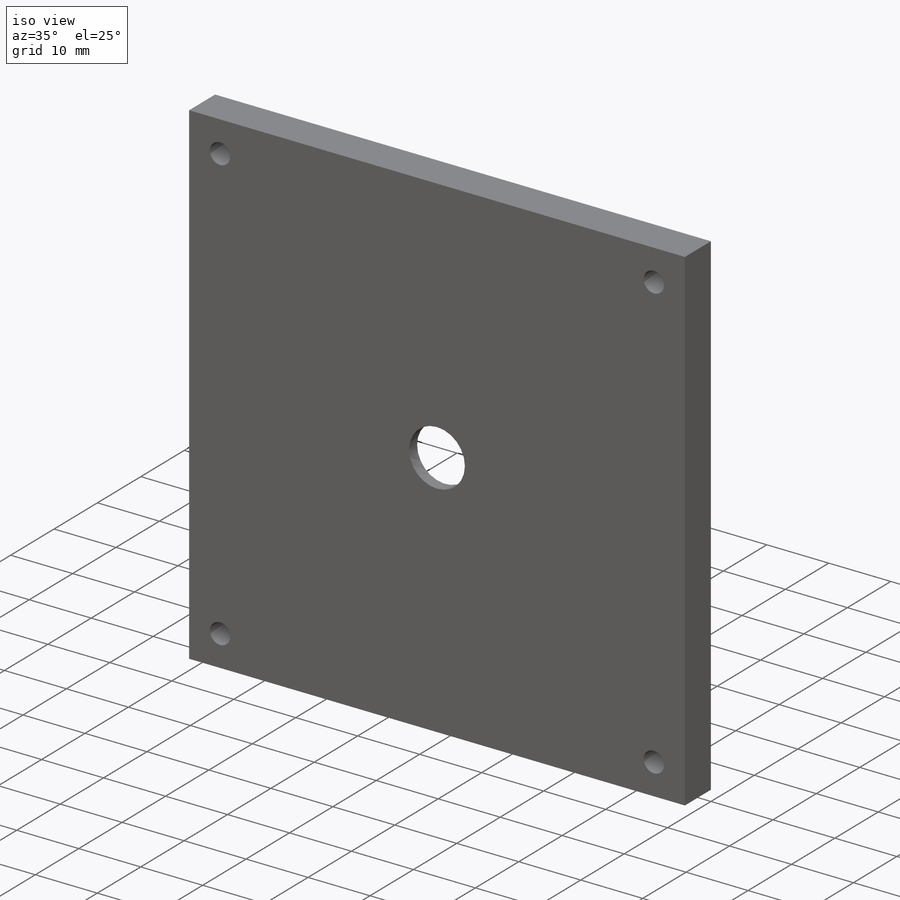
[diagram: iso view]
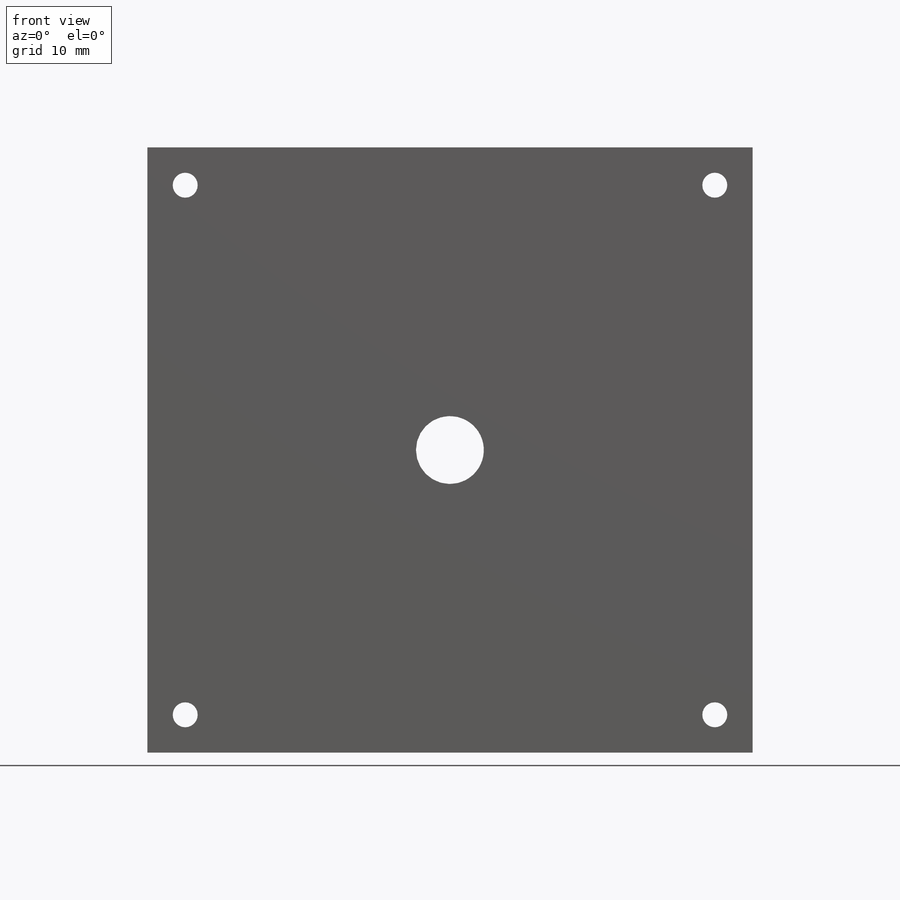
[diagram: front view]
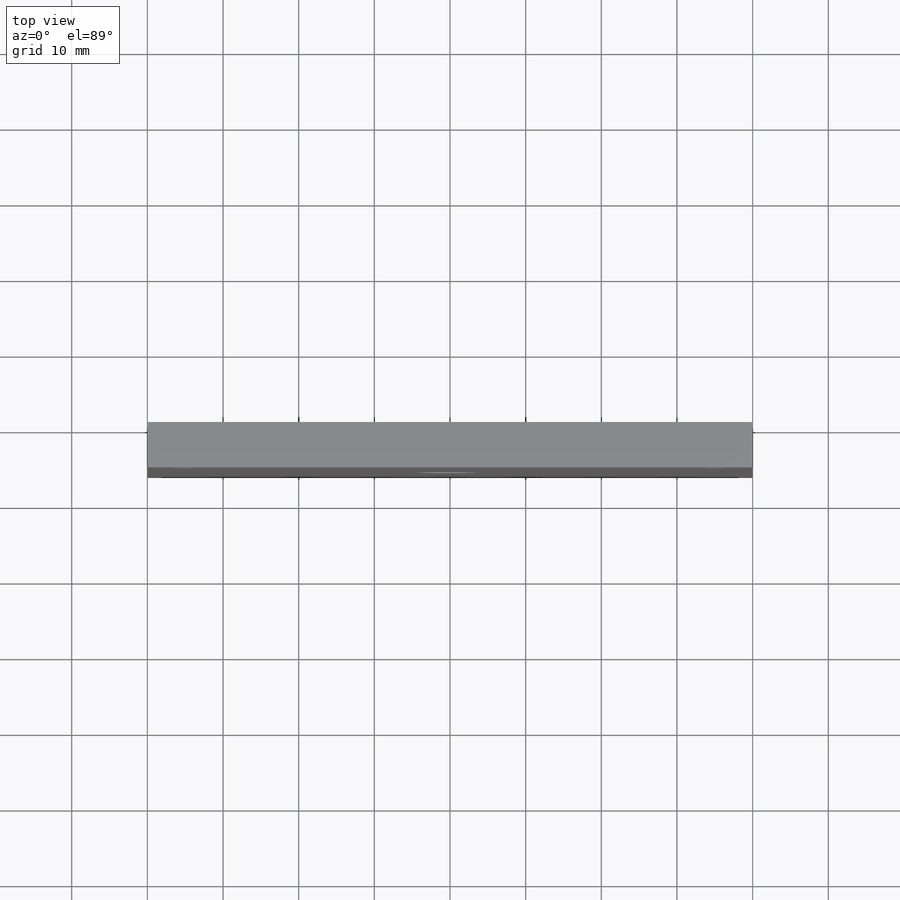
[diagram: top view]
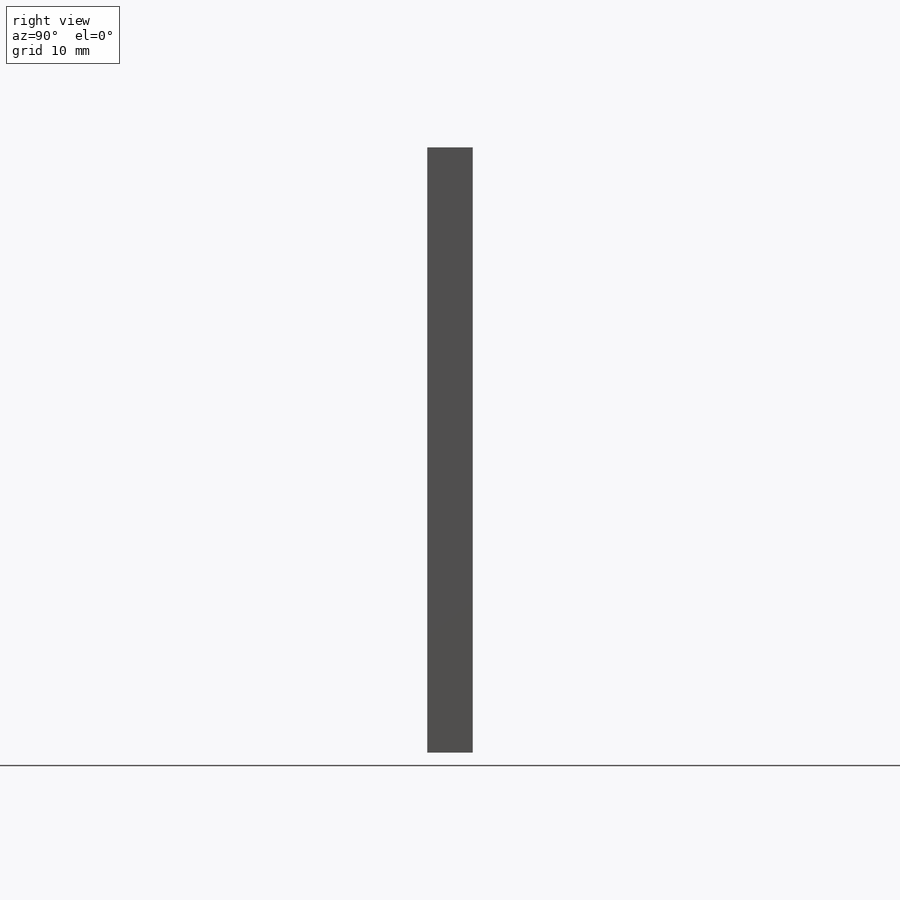
[diagram: right view]
SOLIDWORKS PART (.sldprt)
format: sldprt  version: not decoded by parser v0  size: 221,696 bytes
history: native  units: mm
features: sketch x6, thread x4, plane x3, hole x2, material x1, extrude x1, chamfer x1 (+9 scaffold rows collapsed)
feature tree (27):
  scaffold x9  (default folders/planes/origin — collapsed)
  material  "Material <nicht festgelegt>"
  plane  "Ebene vorne"
  plane  "Ebene oben"
  plane  "Ebene rechts"
  sketch  "Skizze1"  dims[D2=5.0mm D1=80.0mm]
  extrude  "Aufsatz-Linear austragen1"  Depth=6mm
  chamfer  "Fase1"  Distance=4mm Angle=45deg
  sketch  "Skizze5"  dims[c1.D1=5.0mm c1.D2=~8.40682mm c1.D3=80.0mm c2.D2=80.0mm c3.D2=4.0]
  hole  "M4 Gewindebohrung2"  Diameter=3.3mm Depth=11.5mm
  sketch  "Skizze7"
  sketch  "Skizze6"  dims[hole-wizard template sketch: 34 standard entries collapsed; hole parameters kept: c6.Bohrerdurchmesser=3.3mm c6.Bohrungstiefe=11.5mm c7.D3=~14.816244mm]
  thread  "Bohrungsgewinde2"  Diameter=4mm  [1 undecoded]
  thread  "Bohrungsgewinde3"  Diameter=4mm  [1 undecoded]
  thread  "Bohrungsgewinde4"  Diameter=4mm  [1 undecoded]
  thread  "Bohrungsgewinde5"  Diameter=4mm  [1 undecoded]
  hole  "Formsenkung für M8 Linsensenkschraube1"  Diameter=9mm Depth=6mm
  sketch  "Skizze9"
  sketch  "Skizze8"  dims[hole-wizard template sketch: 34 standard entries collapsed; hole parameters kept: c7.D1=25.4mm c7.D2=101.6mm c7.D3=31.75mm c7.D4=~3.666174mm c7.D5=30.48mm c7.D6=~9.919017mm c7.Bohrerdurchmesser=9.0mm c7.Bohrungstiefe=6.0mm c7.Senkdurchmesser (Oben)=17.3mm c8.D4=~3.666174mm]
decode coverage: 12 of 14 modeling features carry decoded parameters
note: ~ marks probable driven/reference dimensions
note: 4 parameter values undecoded
note: suppression state not decoded; provenance and decode notes live in map.json
